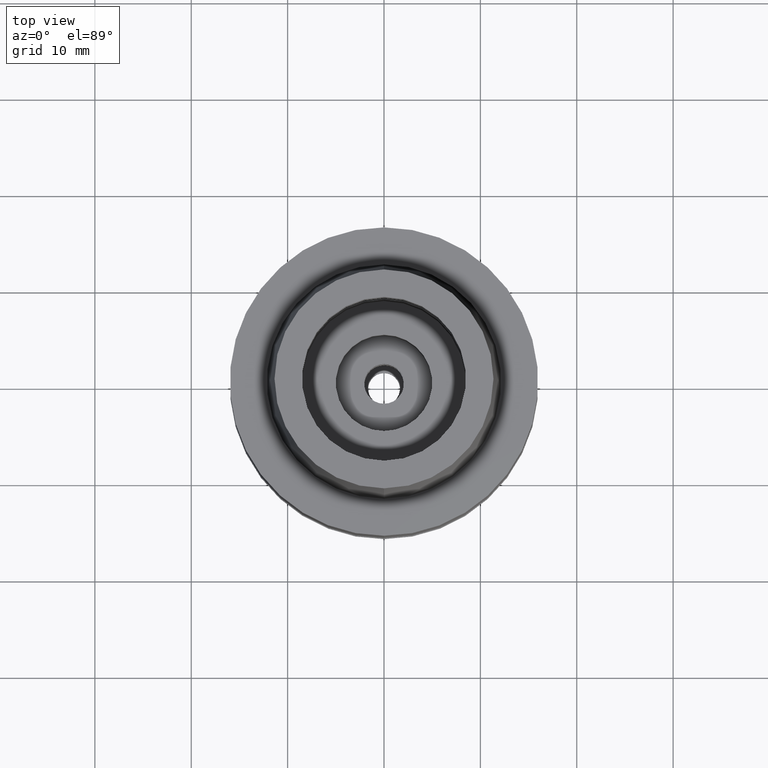
[diagram: clean part render]
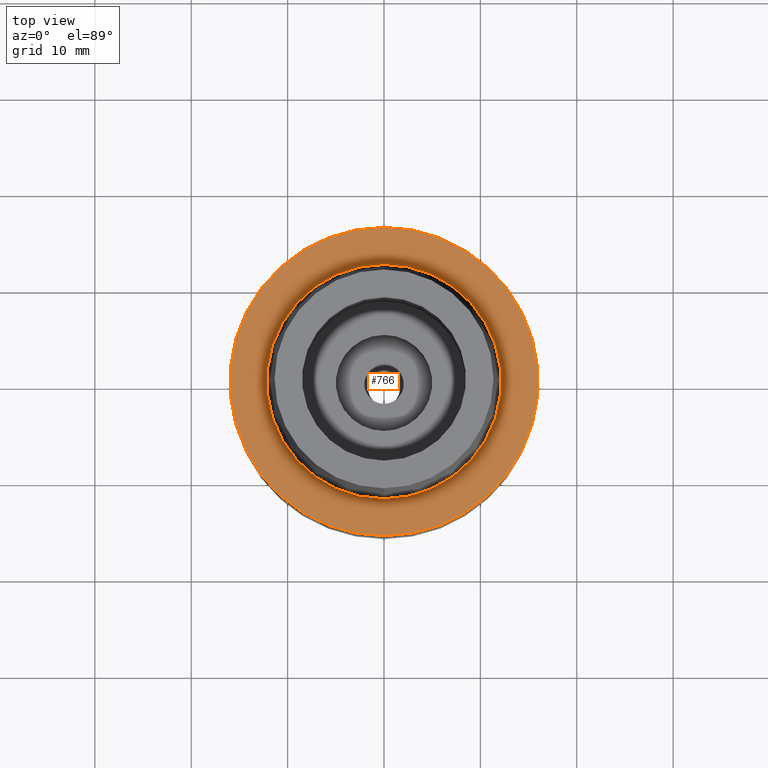
[diagram: same view with one face highlighted and labeled with its STEP entity id]
A machine part, top view. The second image highlights one B-rep face of the part: STEP entity #766.
In plain terms, the highlighted planar face has unit normal (0, 0, 1).
Its self-contained STEP definition (entity closure, byte-faithful):
#131 = CARTESIAN_POINT ( 'NONE',  ( 0.0000000000000000000, -16.00000000000000000, -2.842170943039999687E-14 ) ) ;
#181 = CARTESIAN_POINT ( 'NONE',  ( 0.0000000000000000000, 0.0000000000000000000, 3.126388037344000570E-13 ) ) ;
#225 = DIRECTION ( 'NONE',  ( 1.000000000000000000, 0.0000000000000000000, 0.0000000000000000000 ) ) ;
#238 = DIRECTION ( 'NONE',  ( 0.0000000000000000000, 0.0000000000000000000, 1.000000000000000000 ) ) ;
#336 = VERTEX_POINT ( 'NONE', #131 ) ;
#338 = CARTESIAN_POINT ( 'NONE',  ( 0.0000000000000000000, 12.15999970738999991, 2.078337502097999714E-13 ) ) ;
#375 = DIRECTION ( 'NONE',  ( 0.0000000000000000000, 0.0000000000000000000, 1.000000000000000000 ) ) ;
#489 = ORIENTED_EDGE ( 'NONE', *, *, #1862, .F. ) ;
#507 = DIRECTION ( 'NONE',  ( 0.0000000000000000000, 0.0000000000000000000, -1.000000000000000000 ) ) ;
#642 = CARTESIAN_POINT ( 'NONE',  ( 0.0000000000000000000, 0.0000000000000000000, 0.0000000000000000000 ) ) ;
#720 = CARTESIAN_POINT ( 'NONE',  ( 0.0000000000000000000, -12.15999970738999991, 2.078337502097999714E-13 ) ) ;
#723 = ORIENTED_EDGE ( 'NONE', *, *, #891, .F. ) ;
#766 = ADVANCED_FACE ( 'NONE', ( #1054, #1228 ), #2488, .T. ) ;
#795 = CIRCLE ( 'NONE', #837, 12.15999970738999991 ) ;
#837 = AXIS2_PLACEMENT_3D ( 'NONE', #181, #2252, #1860 ) ;
#882 = AXIS2_PLACEMENT_3D ( 'NONE', #952, #507, #1389 ) ;
#891 = EDGE_CURVE ( 'NONE', #2539, #2124, #1926, .T. ) ;
#952 = CARTESIAN_POINT ( 'NONE',  ( 0.0000000000000000000, 0.0000000000000000000, -2.842170943039999687E-14 ) ) ;
#962 = ORIENTED_EDGE ( 'NONE', *, *, #1516, .F. ) ;
#1026 = DIRECTION ( 'NONE',  ( 0.0000000000000000000, -1.000000000000000000, 0.0000000000000000000 ) ) ;
#1032 = EDGE_LOOP ( 'NONE', ( #962, #723 ) ) ;
#1054 = FACE_OUTER_BOUND ( 'NONE', #1885, .T. ) ;
#1125 = DIRECTION ( 'NONE',  ( 0.0000000000000000000, -1.000000000000000000, 0.0000000000000000000 ) ) ;
#1149 = AXIS2_PLACEMENT_3D ( 'NONE', #1372, #2358, #1125 ) ;
#1194 = CIRCLE ( 'NONE', #1149, 16.00000000000000000 ) ;
#1228 = FACE_BOUND ( 'NONE', #1032, .T. ) ;
#1262 = VERTEX_POINT ( 'NONE', #1581 ) ;
#1362 = AXIS2_PLACEMENT_3D ( 'NONE', #642, #238, #225 ) ;
#1372 = CARTESIAN_POINT ( 'NONE',  ( 0.0000000000000000000, 0.0000000000000000000, -2.842170943039999687E-14 ) ) ;
#1389 = DIRECTION ( 'NONE',  ( 0.0000000000000000000, 1.000000000000000000, 0.0000000000000000000 ) ) ;
#1414 = EDGE_CURVE ( 'NONE', #1262, #336, #1806, .T. ) ;
#1448 = AXIS2_PLACEMENT_3D ( 'NONE', #2082, #375, #1026 ) ;
#1516 = EDGE_CURVE ( 'NONE', #2124, #2539, #795, .T. ) ;
#1581 = CARTESIAN_POINT ( 'NONE',  ( 0.0000000000000000000, 16.00000000000000000, -2.842170943039999687E-14 ) ) ;
#1806 = CIRCLE ( 'NONE', #882, 16.00000000000000000 ) ;
#1860 = DIRECTION ( 'NONE',  ( 0.0000000000000000000, 1.000000000000000000, 0.0000000000000000000 ) ) ;
#1862 = EDGE_CURVE ( 'NONE', #336, #1262, #1194, .T. ) ;
#1885 = EDGE_LOOP ( 'NONE', ( #2338, #489 ) ) ;
#1926 = CIRCLE ( 'NONE', #1448, 12.15999970738999991 ) ;
#2082 = CARTESIAN_POINT ( 'NONE',  ( 0.0000000000000000000, 0.0000000000000000000, 3.126388037344000570E-13 ) ) ;
#2124 = VERTEX_POINT ( 'NONE', #338 ) ;
#2252 = DIRECTION ( 'NONE',  ( 0.0000000000000000000, 0.0000000000000000000, 1.000000000000000000 ) ) ;
#2338 = ORIENTED_EDGE ( 'NONE', *, *, #1414, .F. ) ;
#2358 = DIRECTION ( 'NONE',  ( 0.0000000000000000000, 0.0000000000000000000, -1.000000000000000000 ) ) ;
#2488 = PLANE ( 'NONE',  #1362 ) ;
#2539 = VERTEX_POINT ( 'NONE', #720 ) ;